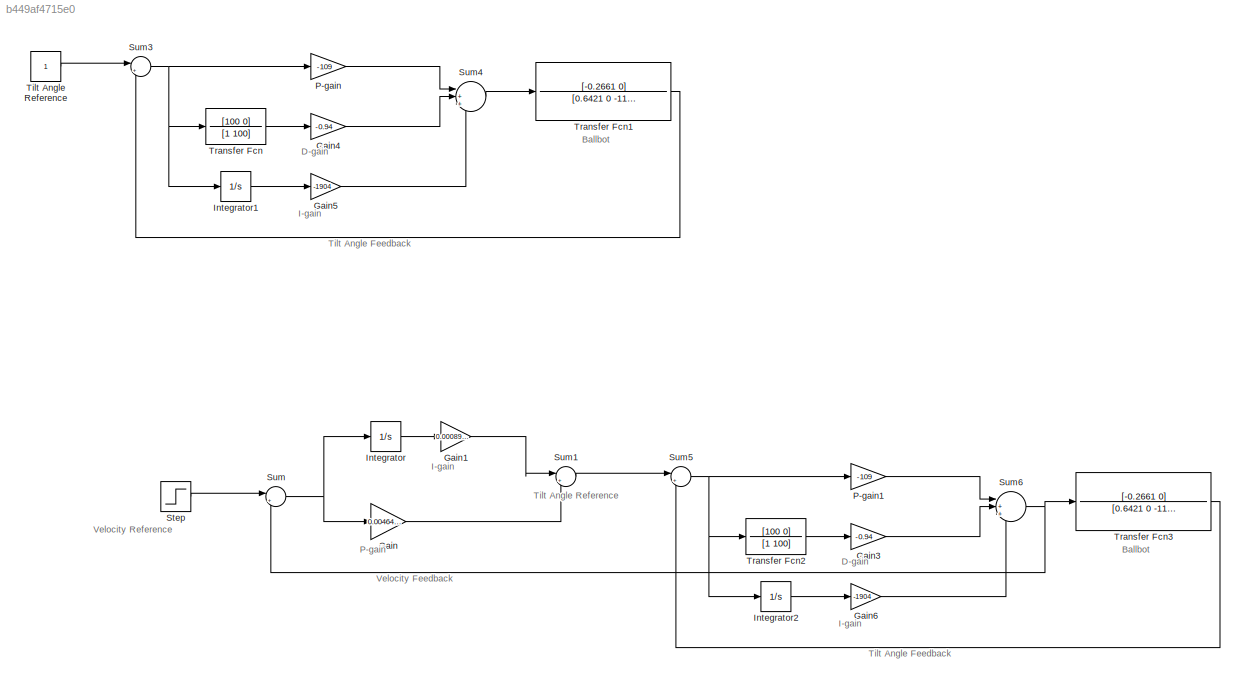
MODEL slx_b449af4715e0
KIND model
CONFIG AbsTol = auto
CONFIG EnableMultiTasking = off
CONFIG FixedStep = 0.001
CONFIG MaxStep = auto
CONFIG MinStep = auto
CONFIG RelTol = 1e-3
CONFIG SampleTimeConstraint = Unconstrained
CONFIG Solver = ode5
CONFIG SolverName = ode5
CONFIG StartTime = 0.0
CONFIG StopTime = 70
BLOCK [Gain] Gain
  Gain = 0.0046436
  OutDataTypeStr = Inherit: Inherit via internal rule
  ParamDataTypeStr = Inherit: Inherit via internal rule
  SaturateOnIntegerOverflow = off
BLOCK [Gain] Gain1
  Gain = 0.00089338
  OutDataTypeStr = Inherit: Inherit via internal rule
  ParamDataTypeStr = Inherit: Inherit via internal rule
  SaturateOnIntegerOverflow = off
BLOCK [Gain] Gain3
  Gain = -0.94
  OutDataTypeStr = Inherit: Inherit via internal rule
  ParamDataTypeStr = Inherit: Inherit via internal rule
  SaturateOnIntegerOverflow = off
BLOCK [Gain] Gain4
  Commented = on
  Gain = -0.94
  OutDataTypeStr = Inherit: Inherit via internal rule
  ParamDataTypeStr = Inherit: Inherit via internal rule
  SaturateOnIntegerOverflow = off
BLOCK [Gain] Gain5
  Commented = on
  Gain = -1904
  OutDataTypeStr = Inherit: Inherit via internal rule
  ParamDataTypeStr = Inherit: Inherit via internal rule
  SaturateOnIntegerOverflow = off
BLOCK [Gain] Gain6
  Gain = -1904
  OutDataTypeStr = Inherit: Inherit via internal rule
  ParamDataTypeStr = Inherit: Inherit via internal rule
  SaturateOnIntegerOverflow = off
BLOCK [Integrator] Integrator
  Ports = [1, 1]
BLOCK [Integrator] Integrator1
  Commented = on
  Ports = [1, 1]
BLOCK [Integrator] Integrator2
  Ports = [1, 1]
BLOCK [Gain] P-gain
  Commented = on
  Gain = -109
  OutDataTypeStr = Inherit: Inherit via internal rule
  ParamDataTypeStr = Inherit: Inherit via internal rule
  SaturateOnIntegerOverflow = off
BLOCK [Gain] P-gain1
  Gain = -109
  OutDataTypeStr = Inherit: Inherit via internal rule
  ParamDataTypeStr = Inherit: Inherit via internal rule
  SaturateOnIntegerOverflow = off
BLOCK [Step] Step
  After = 20
  SampleTime = 0
BLOCK [Sum] Sum
  IconShape = round
  InputSameDT = off
  Inputs = |+-
  OutDataTypeStr = Inherit: Inherit via internal rule
  Ports = [2, 1]
  SaturateOnIntegerOverflow = off
BLOCK [Sum] Sum1
  IconShape = round
  InputSameDT = off
  Inputs = |++
  OutDataTypeStr = Inherit: Inherit via internal rule
  Ports = [2, 1]
  SaturateOnIntegerOverflow = off
BLOCK [Sum] Sum3
  Commented = on
  IconShape = round
  InputSameDT = off
  Inputs = |+-
  OutDataTypeStr = Inherit: Inherit via internal rule
  Ports = [2, 1]
  SaturateOnIntegerOverflow = off
BLOCK [Sum] Sum4
  Commented = on
  IconShape = round
  InputSameDT = off
  Inputs = |+++
  OutDataTypeStr = Inherit: Inherit via internal rule
  Ports = [3, 1]
  SaturateOnIntegerOverflow = off
BLOCK [Sum] Sum5
  IconShape = round
  InputSameDT = off
  Inputs = |+-
  OutDataTypeStr = Inherit: Inherit via internal rule
  Ports = [2, 1]
  SaturateOnIntegerOverflow = off
BLOCK [Sum] Sum6
  IconShape = round
  InputSameDT = off
  Inputs = |+++
  OutDataTypeStr = Inherit: Inherit via internal rule
  Ports = [3, 1]
  SaturateOnIntegerOverflow = off
BLOCK [Constant] Tilt Angle Reference
  Commented = on
BLOCK [TransferFcn] Transfer Fcn
  Commented = on
  Denominator = [1 100]
  Numerator = [100 0]
BLOCK [TransferFcn] Transfer Fcn1
  Commented = on
  Denominator = [0.6421 0 -11.39]
  Numerator = [-0.2661 0]
BLOCK [TransferFcn] Transfer Fcn2
  Denominator = [1 100]
  Numerator = [100 0]
BLOCK [TransferFcn] Transfer Fcn3
  Denominator = [0.6421 0 -11.39]
  Numerator = [-0.2661 0]
ANNOTATION (root): Ballbot
ANNOTATION (root): D-gain
ANNOTATION (root): I-gain
ANNOTATION (root): P-gain
ANNOTATION (root): Tilt Angle Feedback
ANNOTATION (root): Tilt Angle Reference
ANNOTATION (root): Velocity Feedback
ANNOTATION (root): Velocity Reference
LINE Gain1:1 -> Sum1:1
LINE Gain3:1 -> Sum6:2
LINE Gain4:1 -> Sum4:2
LINE Gain5:1 -> Sum4:3
LINE Gain6:1 -> Sum6:3
LINE Gain:1 -> Sum1:2
LINE Integrator1:1 -> Gain5:1
LINE Integrator2:1 -> Gain6:1
LINE Integrator:1 -> Gain1:1
LINE P-gain1:1 -> Sum6:1
LINE P-gain:1 -> Sum4:1
LINE Step:1 -> Sum:1
LINE Sum1:1 -> Sum5:1
NET Sum3:1 -> Integrator1:1, P-gain:1, Transfer Fcn:1
LINE Sum4:1 -> Transfer Fcn1:1
NET Sum5:1 -> Integrator2:1, P-gain1:1, Transfer Fcn2:1
NET Sum6:1 -> Sum:2, Transfer Fcn3:1
NET Sum:1 -> Gain:1, Integrator:1
LINE Tilt Angle Reference:1 -> Sum3:1
LINE Transfer Fcn1:1 -> Sum3:2
LINE Transfer Fcn2:1 -> Gain3:1
LINE Transfer Fcn3:1 -> Sum5:2
LINE Transfer Fcn:1 -> Gain4:1
note: NET lines group one-source signal fan-out (src -> all destinations, sorted); 1:1 wires keep LINE
